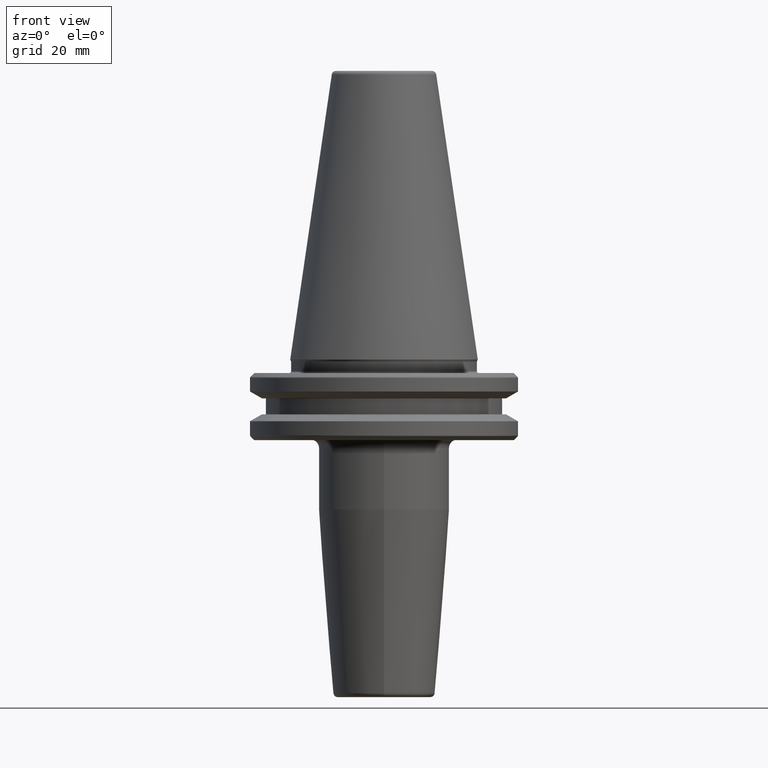
[diagram: clean part render]
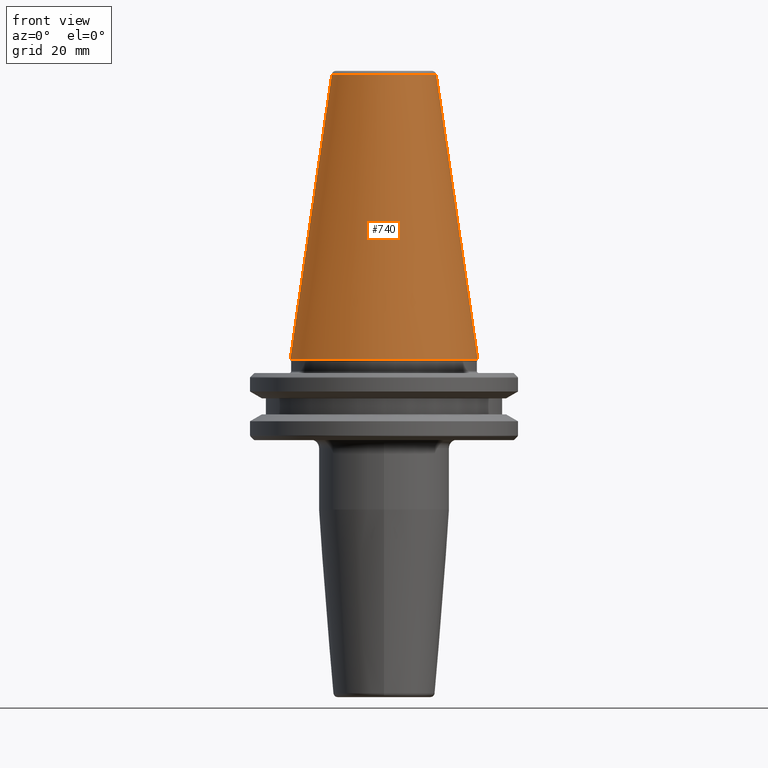
[diagram: same view with one face highlighted and labeled with its STEP entity id]
A machine part, front view. The second image highlights one B-rep face of the part: STEP entity #740.
In plain terms, the highlighted conical surface has half-angle 8.297 deg.
Its self-contained STEP definition (entity closure, byte-faithful):
#86 = DIRECTION ( 'NONE',  ( -0.0000000000000000000, -0.0000000000000000000, 1.000000000000000000 ) ) ;
#121 = CONICAL_SURFACE ( 'NONE', #263, 12.37469537611110800, 0.1448138465474191100 ) ;
#193 = FACE_OUTER_BOUND ( 'NONE', #763, .T. ) ;
#205 = CARTESIAN_POINT ( 'NONE',  ( 0.0000000000000000000, 0.0000000000000000000, 67.54430822726729400 ) ) ;
#263 = AXIS2_PLACEMENT_3D ( 'NONE', #205, #394, #768 ) ;
#273 = VERTEX_POINT ( 'NONE', #507 ) ;
#338 = AXIS2_PLACEMENT_3D ( 'NONE', #1126, #537, #1225 ) ;
#359 = CIRCLE ( 'NONE', #578, 12.37469537611110800 ) ;
#394 = DIRECTION ( 'NONE',  ( 0.0000000000000000000, 0.0000000000000000000, -1.000000000000000000 ) ) ;
#464 = LINE ( 'NONE', #1246, #1199 ) ;
#507 = CARTESIAN_POINT ( 'NONE',  ( -22.22500000000000500, 2.721777511104993200E-015, 0.0000000000000000000 ) ) ;
#537 = DIRECTION ( 'NONE',  ( -0.0000000000000000000, -0.0000000000000000000, 1.000000000000000000 ) ) ;
#578 = AXIS2_PLACEMENT_3D ( 'NONE', #683, #86, #774 ) ;
#586 = VECTOR ( 'NONE', #1049, 1000.000000000000000 ) ;
#671 = CARTESIAN_POINT ( 'NONE',  ( 22.22500000000000500, 0.0000000000000000000, 0.0000000000000000000 ) ) ;
#672 = CARTESIAN_POINT ( 'NONE',  ( -12.37469537611110800, 0.0000000000000000000, 67.54430822726729400 ) ) ;
#683 = CARTESIAN_POINT ( 'NONE',  ( 0.0000000000000000000, 0.0000000000000000000, 67.54430822726729400 ) ) ;
#708 = EDGE_CURVE ( 'NONE', #1232, #818, #464, .T. ) ;
#740 = ADVANCED_FACE ( 'NONE', ( #193 ), #121, .T. ) ;
#763 = EDGE_LOOP ( 'NONE', ( #1112, #854, #877, #1064 ) ) ;
#768 = DIRECTION ( 'NONE',  ( -1.000000000000000000, 0.0000000000000000000, 0.0000000000000000000 ) ) ;
#774 = DIRECTION ( 'NONE',  ( 1.000000000000000000, 0.0000000000000000000, 0.0000000000000000000 ) ) ;
#783 = CARTESIAN_POINT ( 'NONE',  ( 12.37469537611110800, 2.118620309691397700E-015, 67.54430822726729400 ) ) ;
#788 = EDGE_CURVE ( 'NONE', #1139, #273, #1101, .T. ) ;
#818 = VERTEX_POINT ( 'NONE', #671 ) ;
#854 = ORIENTED_EDGE ( 'NONE', *, *, #1164, .F. ) ;
#877 = ORIENTED_EDGE ( 'NONE', *, *, #788, .T. ) ;
#978 = CIRCLE ( 'NONE', #338, 22.22500000000000500 ) ;
#1044 = DIRECTION ( 'NONE',  ( 0.1443082272673071000, 1.767266086135364600E-017, -0.9895327864921743500 ) ) ;
#1049 = DIRECTION ( 'NONE',  ( -0.1443082272673071000, 0.0000000000000000000, -0.9895327864921743500 ) ) ;
#1064 = ORIENTED_EDGE ( 'NONE', *, *, #1096, .T. ) ;
#1096 = EDGE_CURVE ( 'NONE', #273, #818, #978, .T. ) ;
#1101 = LINE ( 'NONE', #1155, #586 ) ;
#1112 = ORIENTED_EDGE ( 'NONE', *, *, #708, .F. ) ;
#1126 = CARTESIAN_POINT ( 'NONE',  ( 0.0000000000000000000, 0.0000000000000000000, 0.0000000000000000000 ) ) ;
#1139 = VERTEX_POINT ( 'NONE', #672 ) ;
#1155 = CARTESIAN_POINT ( 'NONE',  ( -12.37469537611110800, 0.0000000000000000000, 67.54430822726729400 ) ) ;
#1164 = EDGE_CURVE ( 'NONE', #1139, #1232, #359, .T. ) ;
#1199 = VECTOR ( 'NONE', #1044, 1000.000000000000000 ) ;
#1225 = DIRECTION ( 'NONE',  ( 1.000000000000000000, 0.0000000000000000000, 0.0000000000000000000 ) ) ;
#1232 = VERTEX_POINT ( 'NONE', #783 ) ;
#1246 = CARTESIAN_POINT ( 'NONE',  ( 12.37469537611110800, 1.515463108277802100E-015, 67.54430822726729400 ) ) ;